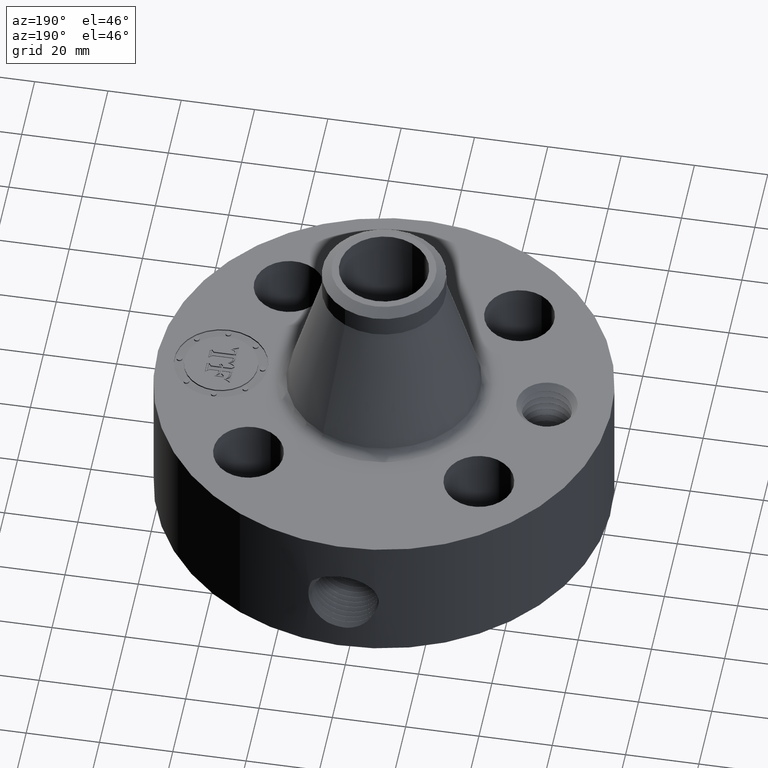
[diagram: clean part render]
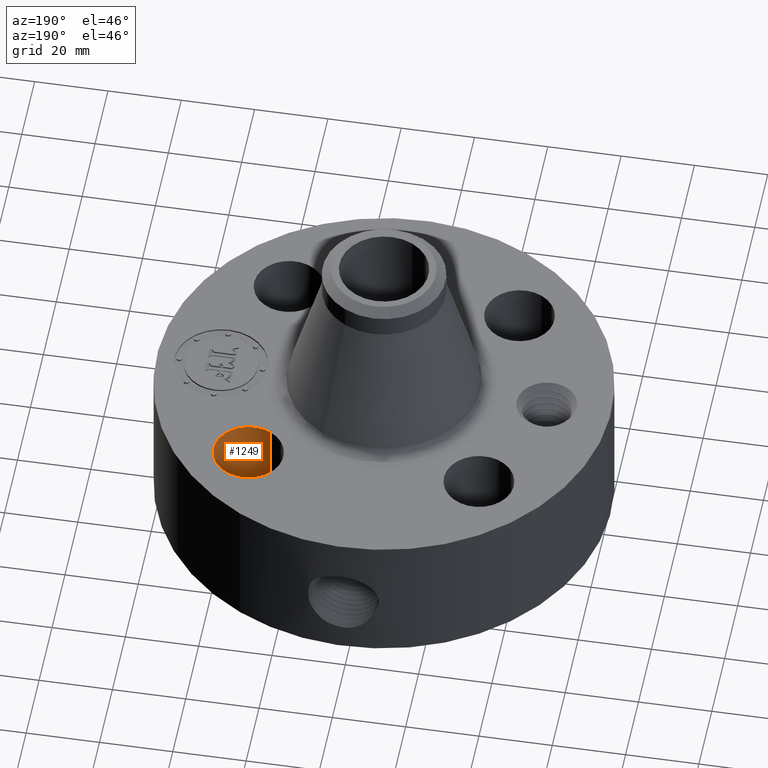
[diagram: same view with one face highlighted and labeled with its STEP entity id]
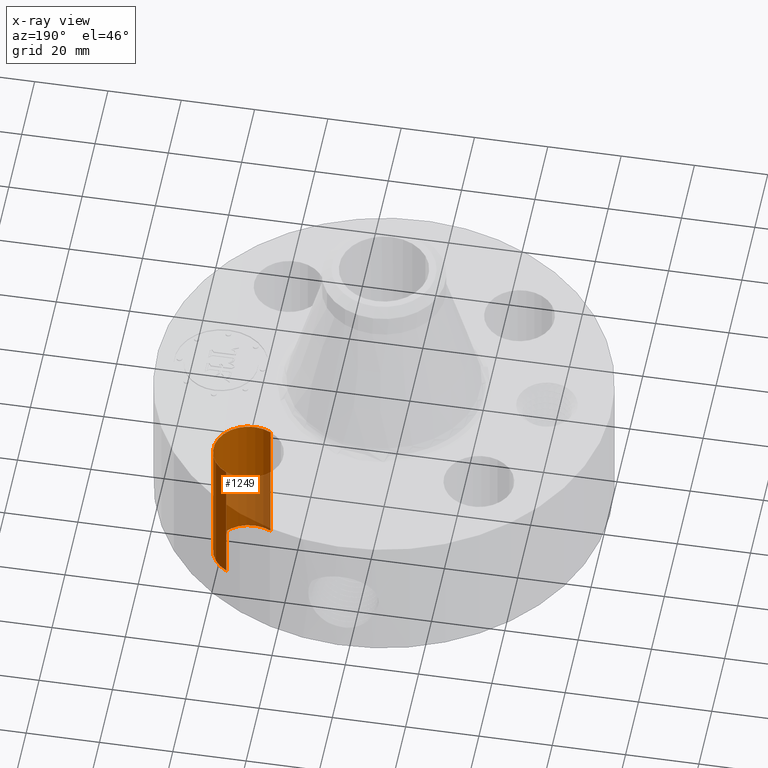
[diagram: x-ray of the same camera — body ghosted, the highlighted face saturated]
A machine part, auxiliary view. The second image highlights one B-rep face of the part: STEP entity #1249.
The next image is the same camera in x-ray: the body ghosted, the highlighted face saturated — about 38% of this face is hidden behind the body in this view.
In plain terms, the highlighted cylindrical surface (edge-blend (fillet) strip) has radius 9.525 mm, axis along (0, 0, -1).
Its self-contained STEP definition (entity closure, byte-faithful):
#308=AXIS2_PLACEMENT_3D('Circle Axis2P3D',#306,#307,$) ;
#547=AXIS2_PLACEMENT_3D('Circle Axis2P3D',#545,#546,$) ;
#1224=AXIS2_PLACEMENT_3D('Cylinder Axis2P3D',#1221,#1222,#1223) ;
#301=CARTESIAN_POINT('Vertex',(1.0576522901,0.908343406371,0.250000000001)) ;
#303=CARTESIAN_POINT('Vertex',(1.41722144406,1.56653032779,0.250000000001)) ;
#306=CARTESIAN_POINT('Axis2P3D Location',(1.23743686708,1.23743686708,0.250000000001)) ;
#545=CARTESIAN_POINT('Axis2P3D Location',(1.23743686708,1.23743686708,1.75000000001)) ;
#549=CARTESIAN_POINT('Vertex',(1.41722144406,1.56653032779,1.75000000001)) ;
#551=CARTESIAN_POINT('Vertex',(1.0576522901,0.908343406371,1.75000000001)) ;
#1221=CARTESIAN_POINT('Axis2P3D Location',(1.23743686708,1.23743686708,1.74606299213)) ;
#1226=CARTESIAN_POINT('Line Origine',(1.0576522901,0.908343406371,1.)) ;
#1231=CARTESIAN_POINT('Line Origine',(1.41722144406,1.56653032779,1.)) ;
#307=DIRECTION('Axis2P3D Direction',(0.,0.,-0.0393700787402)) ;
#546=DIRECTION('Axis2P3D Direction',(0.,0.,-0.0393700787402)) ;
#1222=DIRECTION('Axis2P3D Direction',(0.,0.,-0.0393700787402)) ;
#1223=DIRECTION('Axis2P3D XDirection',(0.0188750212049,0.0345504945626,0.)) ;
#1227=DIRECTION('Vector Direction',(0.,0.,-0.0393700787402)) ;
#1232=DIRECTION('Vector Direction',(0.,0.,-0.0393700787402)) ;
#1228=VECTOR('Line Direction',#1227,0.0393700787402) ;
#1233=VECTOR('Line Direction',#1232,0.0393700787402) ;
#1244=ORIENTED_EDGE('',*,*,#1235,.F.) ;
#1245=ORIENTED_EDGE('',*,*,#310,.T.) ;
#1246=ORIENTED_EDGE('',*,*,#1230,.T.) ;
#1247=ORIENTED_EDGE('',*,*,#553,.F.) ;
#1249=ADVANCED_FACE('PartBody',(#1248),#1225,.F.) ;
#309=CIRCLE('generated circle',#308,0.375000000001) ;
#548=CIRCLE('generated circle',#547,0.375000000001) ;
#1225=CYLINDRICAL_SURFACE('generated cylinder',#1224,0.375000000001) ;
#310=EDGE_CURVE('',#304,#302,#309,.T.) ;
#553=EDGE_CURVE('',#550,#552,#548,.T.) ;
#1230=EDGE_CURVE('',#302,#552,#1229,.F.) ;
#1235=EDGE_CURVE('',#304,#550,#1234,.F.) ;
#1243=EDGE_LOOP('',(#1244,#1245,#1246,#1247)) ;
#1248=FACE_OUTER_BOUND('',#1243,.T.) ;
#1229=LINE('Line',#1226,#1228) ;
#1234=LINE('Line',#1231,#1233) ;
#302=VERTEX_POINT('',#301) ;
#304=VERTEX_POINT('',#303) ;
#550=VERTEX_POINT('',#549) ;
#552=VERTEX_POINT('',#551) ;